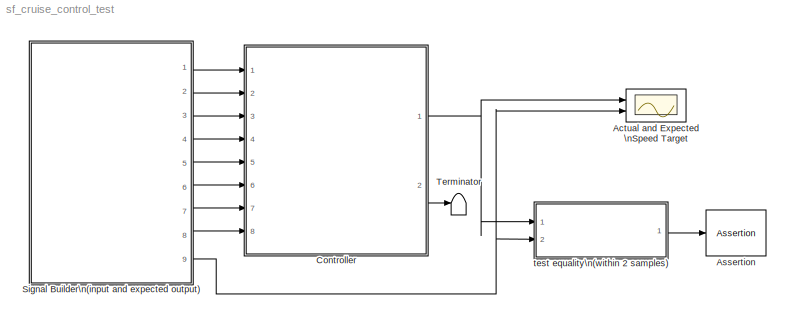
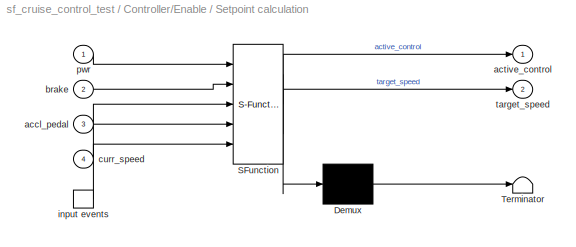
MODEL sf_cruise_control_test
KIND model
CONFIG PreLoadFcn = Kp = 30; Kd = 30; Ki = 10;
BLOCK [Scope] Actual and Expected \nSpeed Target
  DataFormat = StructureWithTime
  NumInputPorts = 2
  Ports = [2]
  YMax = 35~35
  YMin = -1~-1
  ZoomMode = yonly
BLOCK [Assertion] Assertion
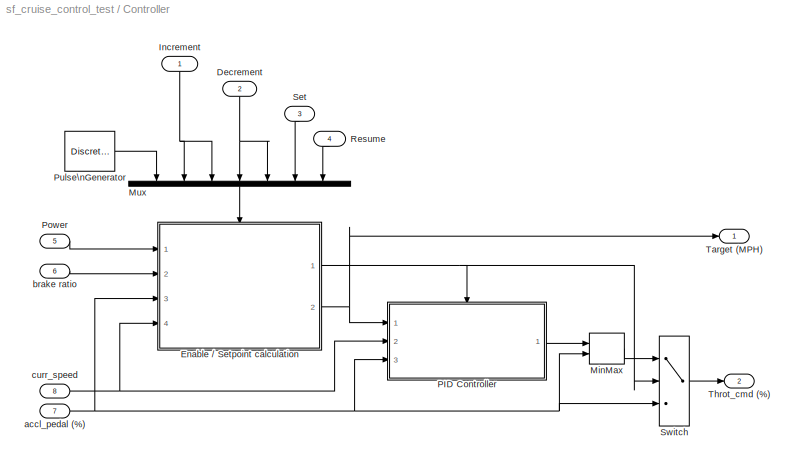
BLOCK [SubSystem] Controller
  MinAlgLoopOccurrences = off
  Ports = [8, 2]
  PropExecContextAcrossSSBoundary = on
  RTWSystemCode = Auto
  TreatAsAtomicUnit = off
BLOCK [Inport] Controller/Decrement
  IconDisplay = Port number
  LatchInput = off
  Port = 2
BLOCK [SubSystem] Controller/Enable // Setpoint calculation
  MaskDescription = Stateflow diagram
  MaskDisplay = plot(sf('Private','sfblk','xIcon'),sf('Private','sfblk','yIcon'));text(0.5,0,sf('Private', 'sfblk', 'tIcon'),'HorizontalAl','Center','VerticalAl','Bottom');
  MaskIconFrame = off
  MaskIconOpaque = off
  MaskIconRotate = none
  MaskIconUnits = autoscale
  MaskSelfModifiable = on
  MaskType = Stateflow
  MinAlgLoopOccurrences = off
  Ports = [4, 2, 0, 1]
  PropExecContextAcrossSSBoundary = on
  RTWSystemCode = Auto
  TreatAsAtomicUnit = on
BLOCK [Demux] Controller/Enable // Setpoint calculation/ Demux 
  Outputs = 1
  Ports = [1, 1]
BLOCK [S-Function] Controller/Enable // Setpoint calculation/ SFunction 
  FunctionName = sf_sfun
  PortCounts = [5 3]
  Ports = [5, 3]
  Tag = Stateflow S-Function sf_cruise_control_test 2
BLOCK [Terminator] Controller/Enable // Setpoint calculation/ Terminator 
BLOCK [TriggerPort] Controller/Enable // Setpoint calculation/ input events 
  Ports = [0, 1]
  ShowOutputPort = on
  TriggerType = either
  ZeroCross = off
BLOCK [Inport] Controller/Enable // Setpoint calculation/accl_pedal
  IconDisplay = Port number
  LatchInput = off
  Port = 3
BLOCK [Outport] Controller/Enable // Setpoint calculation/active_control
  IconDisplay = Port number
BLOCK [Inport] Controller/Enable // Setpoint calculation/brake
  IconDisplay = Port number
  LatchInput = off
  Port = 2
BLOCK [Inport] Controller/Enable // Setpoint calculation/curr_speed
  IconDisplay = Port number
  LatchInput = off
  Port = 4
BLOCK [Inport] Controller/Enable // Setpoint calculation/pwr
  IconDisplay = Port number
  LatchInput = off
  Port = 1
BLOCK [Outport] Controller/Enable // Setpoint calculation/target_speed
  IconDisplay = Port number
  Port = 2
BLOCK [Inport] Controller/Increment
  IconDisplay = Port number
  LatchInput = off
  Port = 1
BLOCK [MinMax] Controller/MinMax
  Function = max
  Inputs = 2
  Ports = [2, 1]
  ZeroCross = off
BLOCK [Mux] Controller/Mux
  DisplayOption = bar
  Inputs = 7
  Ports = [7, 1]
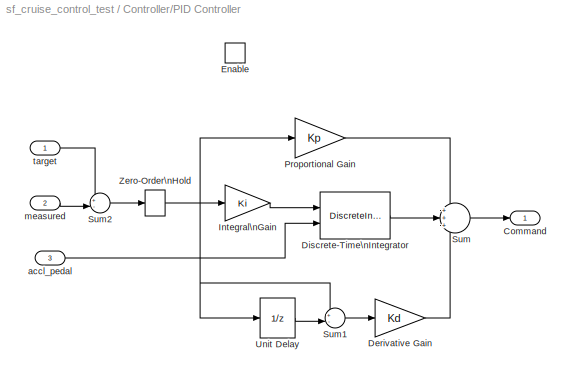
BLOCK [SubSystem] Controller/PID Controller
  MinAlgLoopOccurrences = off
  Ports = [3, 1, 1]
  PropExecContextAcrossSSBoundary = on
  RTWSystemCode = Auto
  TreatAsAtomicUnit = on
BLOCK [Outport] Controller/PID Controller/Command
  IconDisplay = Port number
BLOCK [Gain] Controller/PID Controller/Derivative Gain
  Gain = Kd
BLOCK [DiscreteIntegrator] Controller/PID Controller/Discrete-Time\nIntegrator
  ExternalReset = none
  ICPrevOutput = DiscIntNeverNeededParam
  ICPrevScaledInput = DiscIntNeverNeededParam
  InitialConditionSource = external
  IntegratorMethod = Integration: Forward Euler
  LowerSaturationLimit = -20
  Ports = [2, 1]
  SampleTime = 0.1
  UpperSaturationLimit = 20
BLOCK [EnablePort] Controller/PID Controller/Enable
  Ports = []
  StatesWhenEnabling = reset
  ZeroCross = off
BLOCK [Gain] Controller/PID Controller/Integral\nGain
  Gain = Ki
BLOCK [Gain] Controller/PID Controller/Proportional Gain
  Gain = Kp
BLOCK [Sum] Controller/PID Controller/Sum
  IconShape = round
  Inputs = +++
  Ports = [3, 1]
BLOCK [Sum] Controller/PID Controller/Sum1
  IconShape = round
  Inputs = +-|
  Ports = [2, 1]
BLOCK [Sum] Controller/PID Controller/Sum2
  IconShape = round
  Inputs = +-|
  Ports = [2, 1]
BLOCK [UnitDelay] Controller/PID Controller/Unit Delay
  SampleTime = 0.1
BLOCK [ZeroOrderHold] Controller/PID Controller/Zero-Order\nHold
  SampleTime = 0.1
BLOCK [Inport] Controller/PID Controller/accl_pedal
  IconDisplay = Port number
  LatchInput = off
  Port = 3
BLOCK [Inport] Controller/PID Controller/measured
  IconDisplay = Port number
  LatchInput = off
  Port = 2
BLOCK [Inport] Controller/PID Controller/target
  IconDisplay = Port number
  LatchInput = off
  Port = 1
BLOCK [Inport] Controller/Power
  IconDisplay = Port number
  LatchInput = off
  Port = 5
BLOCK [DiscretePulseGenerator] Controller/Pulse\nGenerator
  Ports = [0, 1]
  SampleTime = .05
BLOCK [Inport] Controller/Resume
  IconDisplay = Port number
  LatchInput = off
  Port = 4
BLOCK [Inport] Controller/Set
  IconDisplay = Port number
  LatchInput = off
  Port = 3
BLOCK [Switch] Controller/Switch
  SaturateOnIntegerOverflow = off
  Threshold = 1
  ZeroCross = off
BLOCK [Outport] Controller/Target (MPH)
  IconDisplay = Port number
BLOCK [Outport] Controller/Throt_cmd (%)
  IconDisplay = Port number
  Port = 2
BLOCK [Inport] Controller/accl_pedal (%)
  IconDisplay = Port number
  LatchInput = off
  Port = 7
BLOCK [Inport] Controller/brake ratio
  IconDisplay = Port number
  LatchInput = off
  Port = 6
BLOCK [Inport] Controller/curr_speed
  IconDisplay = Port number
  LatchInput = off
  Port = 8
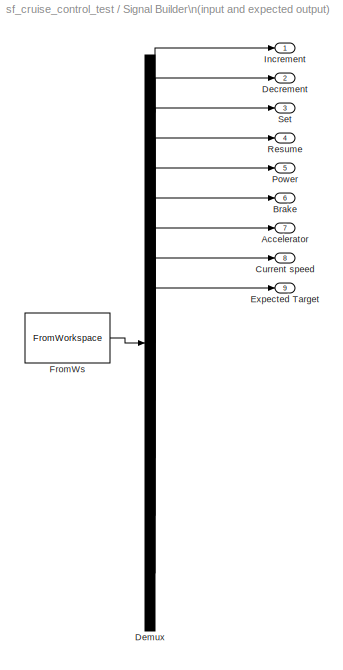
BLOCK [SubSystem] Signal Builder\n(input and expected output)
  ClipboardFcn = sigbuilder_block('clipboard');
  CloseFcn = sigbuilder_block('close');
  CopyFcn = sigbuilder_block('copy');
  DeleteFcn = sigbuilder_block('delete');
  LoadFcn = sigbuilder_block('load',[38.4 183.2 391.2 268.8 ]);
  MaskDisplay = plot(0,0,100,100,[10,10,40,40,10],[80,20,20,80,80],[40,10],[50,50], [40,27,10],[65,72,56],[40,25,25,10],[28,28,43,43]);
  MaskIconFrame = on
  MaskIconOpaque = off
  MaskIconRotate = none
  MaskIconUnits = autoscale
  MaskInitialization = tuvar = sigbuilder_block('maskInit');
  MinAlgLoopOccurrences = off
  ModelCloseFcn = sigbuilder_block('modelClose');
  NameChangeFcn = sigbuilder_block('namechange');
  OpenFcn = sigbuilder_block('open',[92.25 347.25 417 342.75 ]);
  Ports = [0, 9]
  PreSaveFcn = sigbuilder_block('preSave');
  PropExecContextAcrossSSBoundary = on
  RTWSystemCode = Auto
  StartFcn = sigbuilder_block('start');
  StopFcn = sigbuilder_block('stop');
  Tag = STV Subsys
  TreatAsAtomicUnit = off
BLOCK [Outport] Signal Builder\n(input and expected output)/Accelerator
  IconDisplay = Port number
  Port = 7
  Tag = STV Outport
BLOCK [Outport] Signal Builder\n(input and expected output)/Brake
  IconDisplay = Port number
  Port = 6
  Tag = STV Outport
BLOCK [Outport] Signal Builder\n(input and expected output)/Current speed
  IconDisplay = Port number
  Port = 8
  Tag = STV Outport
BLOCK [Outport] Signal Builder\n(input and expected output)/Decrement
  IconDisplay = Port number
  Port = 2
  Tag = STV Outport
BLOCK [Demux] Signal Builder\n(input and expected output)/Demux
  Outputs = 9
  Ports = [1, 9]
  Tag = STV Demux
BLOCK [Outport] Signal Builder\n(input and expected output)/Expected Target
  IconDisplay = Port number
  Port = 9
  Tag = STV Outport
BLOCK [FromWorkspace] Signal Builder\n(input and expected output)/FromWs
  OutputAfterFinalValue = Holding final value
  SampleTime = 0
  SigBuilderData = DataTag0
  Tag = STV FromWs
  VariableName = tuvar
BLOCK [Outport] Signal Builder\n(input and expected output)/Increment
  IconDisplay = Port number
  Tag = STV Outport
BLOCK [Outport] Signal Builder\n(input and expected output)/Power
  IconDisplay = Port number
  Port = 5
  Tag = STV Outport
BLOCK [Outport] Signal Builder\n(input and expected output)/Resume
  IconDisplay = Port number
  Port = 4
  Tag = STV Outport
BLOCK [Outport] Signal Builder\n(input and expected output)/Set
  IconDisplay = Port number
  Port = 3
  Tag = STV Outport
BLOCK [Terminator] Terminator
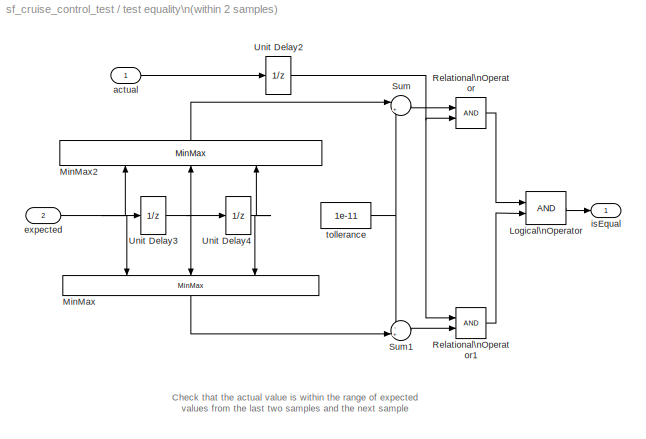
BLOCK [SubSystem] test equality\n(within 2 samples)
  MinAlgLoopOccurrences = off
  Ports = [2, 1]
  PropExecContextAcrossSSBoundary = on
  RTWSystemCode = Auto
  TreatAsAtomicUnit = off
BLOCK [Logic] test equality\n(within 2 samples)/Logical\nOperator
  Ports = [2, 1]
BLOCK [MinMax] test equality\n(within 2 samples)/MinMax
  Function = min
  Inputs = 3
  Ports = [3, 1]
  ZeroCross = off
BLOCK [MinMax] test equality\n(within 2 samples)/MinMax2
  Function = max
  Inputs = 3
  Ports = [3, 1]
  ZeroCross = off
BLOCK [RelationalOperator] test equality\n(within 2 samples)/Relational\nOperator
  ZeroCross = off
BLOCK [RelationalOperator] test equality\n(within 2 samples)/Relational\nOperator1
  ZeroCross = off
BLOCK [Sum] test equality\n(within 2 samples)/Sum
  IconShape = round
  Inputs = |++
  Ports = [2, 1]
BLOCK [Sum] test equality\n(within 2 samples)/Sum1
  IconShape = round
  Inputs = -+|
  Ports = [2, 1]
BLOCK [UnitDelay] test equality\n(within 2 samples)/Unit Delay2
  SampleTime = 0.1
BLOCK [UnitDelay] test equality\n(within 2 samples)/Unit Delay3
  SampleTime = 0.1
BLOCK [UnitDelay] test equality\n(within 2 samples)/Unit Delay4
  SampleTime = 0.1
BLOCK [Inport] test equality\n(within 2 samples)/actual
  IconDisplay = Port number
  LatchInput = off
  Port = 1
BLOCK [Inport] test equality\n(within 2 samples)/expected
  IconDisplay = Port number
  LatchInput = off
  Port = 2
BLOCK [Outport] test equality\n(within 2 samples)/isEqual
  IconDisplay = Port number
BLOCK [Constant] test equality\n(within 2 samples)/tollerance
  Value = 1e-11
ANNOTATION test equality\n(within 2 samples): Check that the actual value is within the range of expected \nvalues from the last two samples and the next sample
NET Controller/Decrement:1 -> Controller/Mux:4, Controller/Mux:5
LINE Controller/Enable // Setpoint calculation/ Demux :1 -> Controller/Enable // Setpoint calculation/ Terminator :1
LINE Controller/Enable // Setpoint calculation/ SFunction :1 -> Controller/Enable // Setpoint calculation/ Demux :1
LINE Controller/Enable // Setpoint calculation/ SFunction :2 -> Controller/Enable // Setpoint calculation/active_control:1
LINE Controller/Enable // Setpoint calculation/ SFunction :3 -> Controller/Enable // Setpoint calculation/target_speed:1
LINE Controller/Enable // Setpoint calculation/ input events :1 -> Controller/Enable // Setpoint calculation/ SFunction :5
LINE Controller/Enable // Setpoint calculation/accl_pedal:1 -> Controller/Enable // Setpoint calculation/ SFunction :3
LINE Controller/Enable // Setpoint calculation/brake:1 -> Controller/Enable // Setpoint calculation/ SFunction :2
LINE Controller/Enable // Setpoint calculation/curr_speed:1 -> Controller/Enable // Setpoint calculation/ SFunction :4
LINE Controller/Enable // Setpoint calculation/pwr:1 -> Controller/Enable // Setpoint calculation/ SFunction :1
NET Controller/Enable // Setpoint calculation:1 -> Controller/PID Controller:enable, Controller/Switch:2
NET Controller/Enable // Setpoint calculation:2 -> Controller/PID Controller:1, Controller/Target (MPH):1
NET Controller/Increment:1 -> Controller/Mux:2, Controller/Mux:3
LINE Controller/MinMax:1 -> Controller/Switch:1
LINE Controller/Mux:1 -> Controller/Enable // Setpoint calculation:trigger
LINE Controller/PID Controller/Derivative Gain:1 -> Controller/PID Controller/Sum:3
LINE Controller/PID Controller/Discrete-Time\nIntegrator:1 -> Controller/PID Controller/Sum:2
LINE Controller/PID Controller/Integral\nGain:1 -> Controller/PID Controller/Discrete-Time\nIntegrator:1
LINE Controller/PID Controller/Proportional Gain:1 -> Controller/PID Controller/Sum:1
LINE Controller/PID Controller/Sum1:1 -> Controller/PID Controller/Derivative Gain:1
LINE Controller/PID Controller/Sum2:1 -> Controller/PID Controller/Zero-Order\nHold:1
LINE Controller/PID Controller/Sum:1 -> Controller/PID Controller/Command:1
LINE Controller/PID Controller/Unit Delay:1 -> Controller/PID Controller/Sum1:2
NET Controller/PID Controller/Zero-Order\nHold:1 -> Controller/PID Controller/Integral\nGain:1, Controller/PID Controller/Proportional Gain:1, Controller/PID Controller/Sum1:1, Controller/PID Controller/Unit Delay:1
LINE Controller/PID Controller/accl_pedal:1 -> Controller/PID Controller/Discrete-Time\nIntegrator:2
LINE Controller/PID Controller/measured:1 -> Controller/PID Controller/Sum2:2
LINE Controller/PID Controller/target:1 -> Controller/PID Controller/Sum2:1
LINE Controller/PID Controller:1 -> Controller/MinMax:1
LINE Controller/Power:1 -> Controller/Enable // Setpoint calculation:1
LINE Controller/Pulse\nGenerator:1 -> Controller/Mux:1
LINE Controller/Resume:1 -> Controller/Mux:7
LINE Controller/Set:1 -> Controller/Mux:6
LINE Controller/Switch:1 -> Controller/Throt_cmd (%):1
NET Controller/accl_pedal (%):1 -> Controller/Enable // Setpoint calculation:3, Controller/MinMax:2, Controller/PID Controller:3, Controller/Switch:3
LINE Controller/brake ratio:1 -> Controller/Enable // Setpoint calculation:2
NET Controller/curr_speed:1 -> Controller/Enable // Setpoint calculation:4, Controller/PID Controller:2
NET Controller:1 -> Actual and Expected \nSpeed Target:1, test equality\n(within 2 samples):1
LINE Controller:2 -> Terminator:1
LINE Signal Builder\n(input and expected output)/Demux:1 -> Signal Builder\n(input and expected output)/Increment:1
LINE Signal Builder\n(input and expected output)/Demux:2 -> Signal Builder\n(input and expected output)/Decrement:1
LINE Signal Builder\n(input and expected output)/Demux:3 -> Signal Builder\n(input and expected output)/Set:1
LINE Signal Builder\n(input and expected output)/Demux:4 -> Signal Builder\n(input and expected output)/Resume:1
LINE Signal Builder\n(input and expected output)/Demux:5 -> Signal Builder\n(input and expected output)/Power:1
LINE Signal Builder\n(input and expected output)/Demux:6 -> Signal Builder\n(input and expected output)/Brake:1
LINE Signal Builder\n(input and expected output)/Demux:7 -> Signal Builder\n(input and expected output)/Accelerator:1
LINE Signal Builder\n(input and expected output)/Demux:8 -> Signal Builder\n(input and expected output)/Current speed:1
LINE Signal Builder\n(input and expected output)/Demux:9 -> Signal Builder\n(input and expected output)/Expected Target:1
LINE Signal Builder\n(input and expected output)/FromWs:1 -> Signal Builder\n(input and expected output)/Demux:1
LINE Signal Builder\n(input and expected output):1 -> Controller:1
LINE Signal Builder\n(input and expected output):2 -> Controller:2
LINE Signal Builder\n(input and expected output):3 -> Controller:3
LINE Signal Builder\n(input and expected output):4 -> Controller:4
LINE Signal Builder\n(input and expected output):5 -> Controller:5
LINE Signal Builder\n(input and expected output):6 -> Controller:6
LINE Signal Builder\n(input and expected output):7 -> Controller:7
LINE Signal Builder\n(input and expected output):8 -> Controller:8
NET Signal Builder\n(input and expected output):9 -> Actual and Expected \nSpeed Target:2, test equality\n(within 2 samples):2
LINE test equality\n(within 2 samples)/Logical\nOperator:1 -> test equality\n(within 2 samples)/isEqual:1
LINE test equality\n(within 2 samples)/MinMax2:1 -> test equality\n(within 2 samples)/Sum:1
LINE test equality\n(within 2 samples)/MinMax:1 -> test equality\n(within 2 samples)/Sum1:2
LINE test equality\n(within 2 samples)/Relational\nOperator1:1 -> test equality\n(within 2 samples)/Logical\nOperator:2
LINE test equality\n(within 2 samples)/Relational\nOperator:1 -> test equality\n(within 2 samples)/Logical\nOperator:1
LINE test equality\n(within 2 samples)/Sum1:1 -> test equality\n(within 2 samples)/Relational\nOperator1:2
LINE test equality\n(within 2 samples)/Sum:1 -> test equality\n(within 2 samples)/Relational\nOperator:1
NET test equality\n(within 2 samples)/Unit Delay2:1 -> test equality\n(within 2 samples)/Relational\nOperator1:1, test equality\n(within 2 samples)/Relational\nOperator:2
NET test equality\n(within 2 samples)/Unit Delay3:1 -> test equality\n(within 2 samples)/MinMax2:2, test equality\n(within 2 samples)/MinMax:2, test equality\n(within 2 samples)/Unit Delay4:1
NET test equality\n(within 2 samples)/Unit Delay4:1 -> test equality\n(within 2 samples)/MinMax2:3, test equality\n(within 2 samples)/MinMax:3
LINE test equality\n(within 2 samples)/actual:1 -> test equality\n(within 2 samples)/Unit Delay2:1
NET test equality\n(within 2 samples)/expected:1 -> test equality\n(within 2 samples)/MinMax2:1, test equality\n(within 2 samples)/MinMax:1, test equality\n(within 2 samples)/Unit Delay3:1
NET test equality\n(within 2 samples)/tollerance:1 -> test equality\n(within 2 samples)/Sum1:1, test equality\n(within 2 samples)/Sum:2
LINE test equality\n(within 2 samples):1 -> Assertion:1
note: NET lines group one-source signal fan-out (src -> all destinations, sorted); 1:1 wires keep LINE
CHART Controller/Enable / Setpoint calculation states=10 transitions=18
  STATE_LABEL 'Set_Point_Calculation'
  STATE_LABEL 'Enable_logic'
  STATE_LABEL 'Hold'
  STATE_LABEL 'Increment\\nen: target_speed++;'
  STATE_LABEL 'Decrement\\nen: target_speed--;'
  STATE_LABEL 'Off'
  STATE_LABEL 'on'
  STATE_LABEL 'active_control'
  STATE_LABEL 'overide\\ntarget_speed = 0;'
  STATE_LABEL 'no_target'
